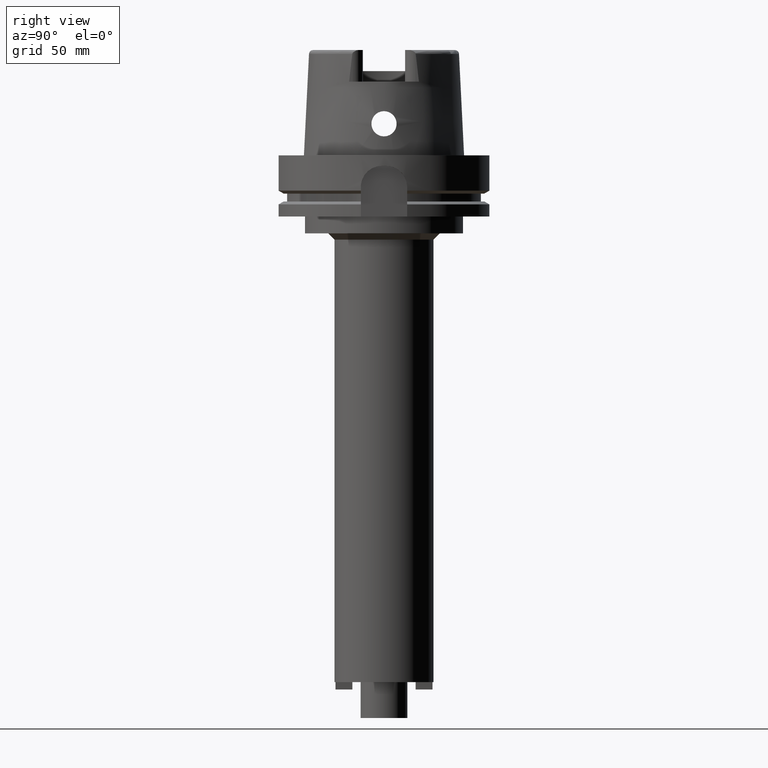
[diagram: clean part render]
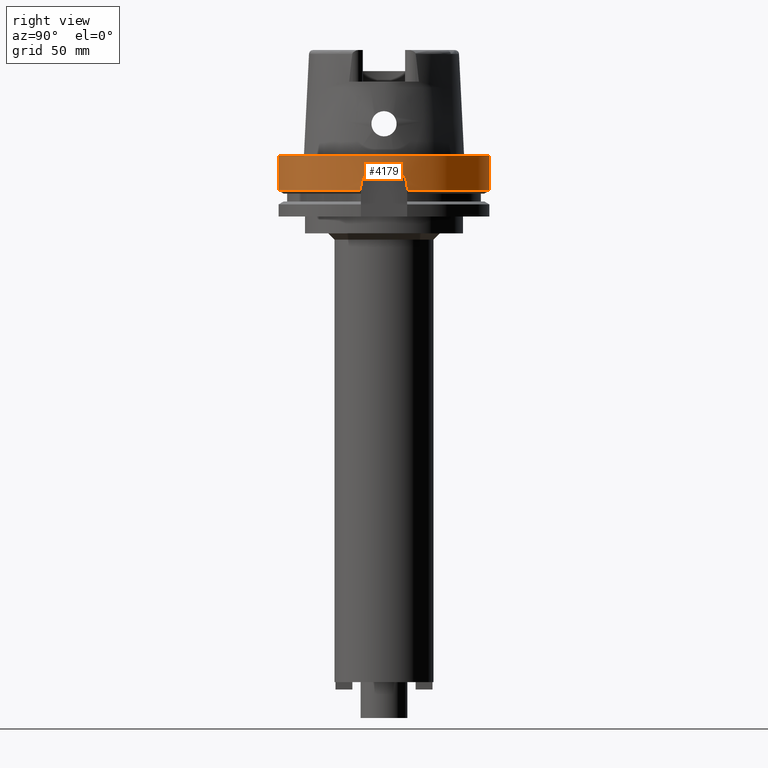
[diagram: same view with one face highlighted and labeled with its STEP entity id]
A machine part, right view. The second image highlights one B-rep face of the part: STEP entity #4179.
In plain terms, the highlighted cylindrical surface (partial cylindrical patch) has radius 50 mm, axis along (0, 0, 1).
Its self-contained STEP definition (entity closure, byte-faithful):
#1587=DIRECTION('',(0.E0,2.969006079282E-14,-1.E0));
#1588=VECTOR('',#1587,1.675240473581E1);
#1589=CARTESIAN_POINT('',(0.E0,-5.E1,-5.305385760342E-13));
#1590=LINE('',#1589,#1588);
#1639=CARTESIAN_POINT('',(4.877499359303E1,1.1E1,-1.675240473581E1));
#1644=CARTESIAN_POINT('',(0.E0,0.E0,-1.675240473581E1));
#1645=DIRECTION('',(0.E0,0.E0,1.E0));
#1646=DIRECTION('',(9.754998718606E-1,2.2E-1,0.E0));
#1647=AXIS2_PLACEMENT_3D('',#1644,#1645,#1646);
#1788=CARTESIAN_POINT('',(4.998999899980E1,-1.E0,-5.E0));
#1789=CARTESIAN_POINT('',(4.997503335548E1,-1.748132544492E0,-5.E0));
#1790=CARTESIAN_POINT('',(4.991285642113E1,-3.210449452570E0,
-5.162472538110E0));
#1791=CARTESIAN_POINT('',(4.972614968720E1,-5.361057813139E0,
-5.905826841703E0));
#1792=CARTESIAN_POINT('',(4.947827835590E1,-7.277362140335E0,
-7.107585916939E0));
#1793=CARTESIAN_POINT('',(4.921216993432E1,-8.879542057543E0,
-8.706683331337E0));
#1794=CARTESIAN_POINT('',(4.897555676035E1,-1.008570185009E1,
-1.062038916370E1));
#1795=CARTESIAN_POINT('',(4.881246854432E1,-1.083593661118E1,
-1.277907189922E1));
#1796=CARTESIAN_POINT('',(4.877499359303E1,-1.1E1,-1.424737472906E1));
#1797=CARTESIAN_POINT('',(4.877499359303E1,-1.1E1,-1.5E1));
#1802=DIRECTION('',(-5.027793947017E-13,6.588842874115E-14,-1.E0));
#1803=VECTOR('',#1802,1.752404735809E0);
#1804=CARTESIAN_POINT('',(4.877499359303E1,-1.1E1,-1.5E1));
#1805=LINE('',#1804,#1803);
#1809=DIRECTION('',(0.E0,-2.969006079282E-14,-1.E0));
#1810=VECTOR('',#1809,1.675240473581E1);
#1811=CARTESIAN_POINT('',(0.E0,5.E1,-5.305385760342E-13));
#1812=LINE('',#1811,#1810);
#1816=DIRECTION('',(4.946700496259E-13,7.095676941355E-14,1.E0));
#1817=VECTOR('',#1816,1.752404735809E0);
#1818=CARTESIAN_POINT('',(4.877499359303E1,1.1E1,-1.675240473581E1));
#1819=LINE('',#1818,#1817);
#1823=CARTESIAN_POINT('',(4.877499359303E1,1.1E1,-1.5E1));
#1824=CARTESIAN_POINT('',(4.877499359303E1,1.1E1,-1.425372994773E1));
#1825=CARTESIAN_POINT('',(4.881185255821E1,1.083860121915E1,-1.279608794803E1));
#1826=CARTESIAN_POINT('',(4.897285431854E1,1.009843637096E1,-1.064886082779E1));
#1827=CARTESIAN_POINT('',(4.920775832637E1,8.903395802446E0,-8.737242484372E0));
#1828=CARTESIAN_POINT('',(4.947345737810E1,7.309575345341E0,-7.133291449271E0));
#1829=CARTESIAN_POINT('',(4.972256002359E1,5.394784596103E0,-5.921340921643E0));
#1830=CARTESIAN_POINT('',(4.991158543598E1,3.233795603750E0,-5.166407890686E0));
#1831=CARTESIAN_POINT('',(4.997485251104E1,1.757172957926E0,-5.E0));
#1832=CARTESIAN_POINT('',(4.998999899980E1,1.E0,-5.E0));
#1837=CARTESIAN_POINT('',(0.E0,0.E0,-5.E0));
#1838=DIRECTION('',(0.E0,0.E0,1.E0));
#1839=DIRECTION('',(9.997999799960E-1,-2.E-2,0.E0));
#1840=AXIS2_PLACEMENT_3D('',#1837,#1838,#1839);
#1891=CARTESIAN_POINT('',(0.E0,0.E0,-1.675240473581E1));
#1892=DIRECTION('',(0.E0,0.E0,1.E0));
#1893=DIRECTION('',(0.E0,-1.E0,0.E0));
#1894=AXIS2_PLACEMENT_3D('',#1891,#1892,#1893);
#2045=CARTESIAN_POINT('',(0.E0,0.E0,-6.252776074689E-13));
#2046=DIRECTION('',(0.E0,0.E0,-1.E0));
#2047=DIRECTION('',(0.E0,1.E0,0.E0));
#2048=AXIS2_PLACEMENT_3D('',#2045,#2046,#2047);
#2759=CARTESIAN_POINT('',(0.E0,-5.E1,-1.675240473581E1));
#2760=VERTEX_POINT('',#2759);
#2761=CARTESIAN_POINT('',(4.877499359303E1,-1.1E1,-1.675240473581E1));
#2762=VERTEX_POINT('',#2761);
#2763=VERTEX_POINT('',#1639);
#2764=CARTESIAN_POINT('',(0.E0,5.E1,-1.675240473581E1));
#2765=VERTEX_POINT('',#2764);
#2767=CARTESIAN_POINT('',(0.E0,5.E1,-5.305385760342E-13));
#2768=VERTEX_POINT('',#2767);
#2769=CARTESIAN_POINT('',(0.E0,-5.E1,-6.252776074689E-13));
#2770=VERTEX_POINT('',#2769);
#2773=CARTESIAN_POINT('',(4.998999899980E1,-1.E0,-5.E0));
#2774=CARTESIAN_POINT('',(4.998999899980E1,1.E0,-5.E0));
#2775=VERTEX_POINT('',#2773);
#2776=VERTEX_POINT('',#2774);
#2777=VERTEX_POINT('',#1797);
#2778=CARTESIAN_POINT('',(4.877499359303E1,1.1E1,-1.5E1));
#2779=VERTEX_POINT('',#2778);
#4157=CARTESIAN_POINT('',(0.E0,0.E0,-2.8285E2));
#4158=DIRECTION('',(0.E0,0.E0,1.E0));
#4159=DIRECTION('',(0.E0,1.E0,0.E0));
#4160=AXIS2_PLACEMENT_3D('',#4157,#4158,#4159);
#4161=CYLINDRICAL_SURFACE('',#4160,5.E1);
#4163=ORIENTED_EDGE('',*,*,#4162,.F.);
#4165=ORIENTED_EDGE('',*,*,#4164,.T.);
#4166=ORIENTED_EDGE('',*,*,#3907,.T.);
#4168=ORIENTED_EDGE('',*,*,#4167,.F.);
#4169=ORIENTED_EDGE('',*,*,#4063,.F.);
#4171=ORIENTED_EDGE('',*,*,#4170,.F.);
#4172=ORIENTED_EDGE('',*,*,#4059,.T.);
#4173=ORIENTED_EDGE('',*,*,#4089,.F.);
#4174=ORIENTED_EDGE('',*,*,#3855,.T.);
#4176=ORIENTED_EDGE('',*,*,#4175,.T.);
#4177=EDGE_LOOP('',(#4163,#4165,#4166,#4168,#4169,#4171,#4172,#4173,#4174,
#4176));
#4178=FACE_OUTER_BOUND('',#4177,.F.);
#1648=CIRCLE('',#1647,5.E1);
#1798=B_SPLINE_CURVE_WITH_KNOTS('',3,(#1788,#1789,#1790,#1791,#1792,#1793,#1794,
#1795,#1796,#1797),.UNSPECIFIED.,.F.,.F.,(4,1,1,1,1,1,1,4),(0.E0,
1.428571428571E-1,2.857142857143E-1,4.285714285714E-1,5.714285714286E-1,
7.142857142857E-1,8.571428571429E-1,1.E0),.UNSPECIFIED.);
#1833=B_SPLINE_CURVE_WITH_KNOTS('',3,(#1823,#1824,#1825,#1826,#1827,#1828,#1829,
#1830,#1831,#1832),.UNSPECIFIED.,.F.,.F.,(4,1,1,1,1,1,1,4),(0.E0,
1.428571428571E-1,2.857142857143E-1,4.285714285714E-1,5.714285714286E-1,
7.142857142857E-1,8.571428571429E-1,1.E0),.UNSPECIFIED.);
#1841=CIRCLE('',#1840,5.E1);
#1895=CIRCLE('',#1894,5.E1);
#2049=CIRCLE('',#2048,5.E1);
#3855=EDGE_CURVE('',#2763,#2779,#1819,.T.);
#3907=EDGE_CURVE('',#2777,#2762,#1805,.T.);
#4059=EDGE_CURVE('',#2768,#2765,#1812,.T.);
#4063=EDGE_CURVE('',#2770,#2760,#1590,.T.);
#4089=EDGE_CURVE('',#2763,#2765,#1648,.T.);
#4162=EDGE_CURVE('',#2775,#2776,#1841,.T.);
#4164=EDGE_CURVE('',#2775,#2777,#1798,.T.);
#4167=EDGE_CURVE('',#2760,#2762,#1895,.T.);
#4170=EDGE_CURVE('',#2768,#2770,#2049,.T.);
#4175=EDGE_CURVE('',#2779,#2776,#1833,.T.);
#4179=ADVANCED_FACE('',(#4178),#4161,.T.);